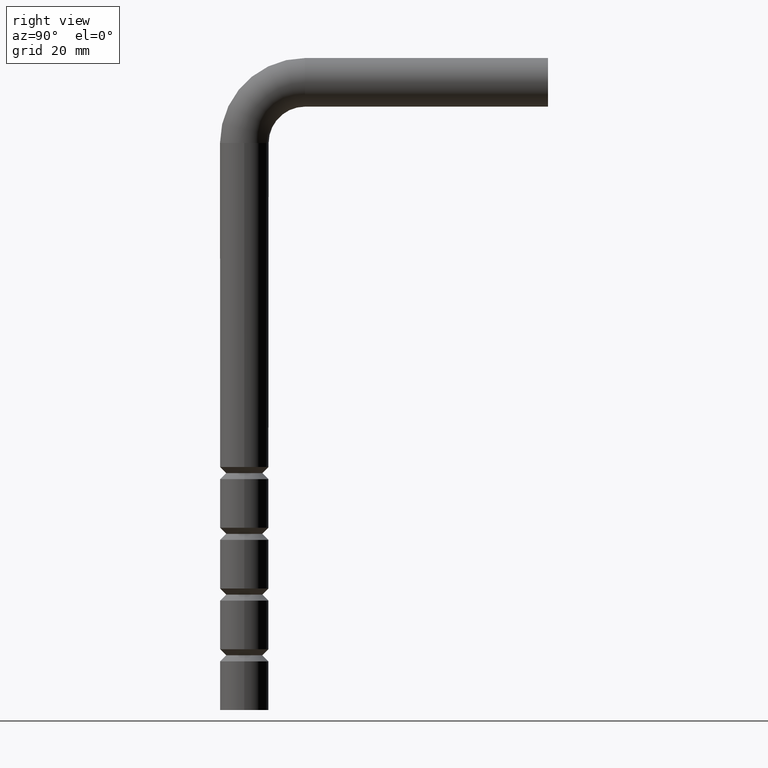
[diagram: clean part render]
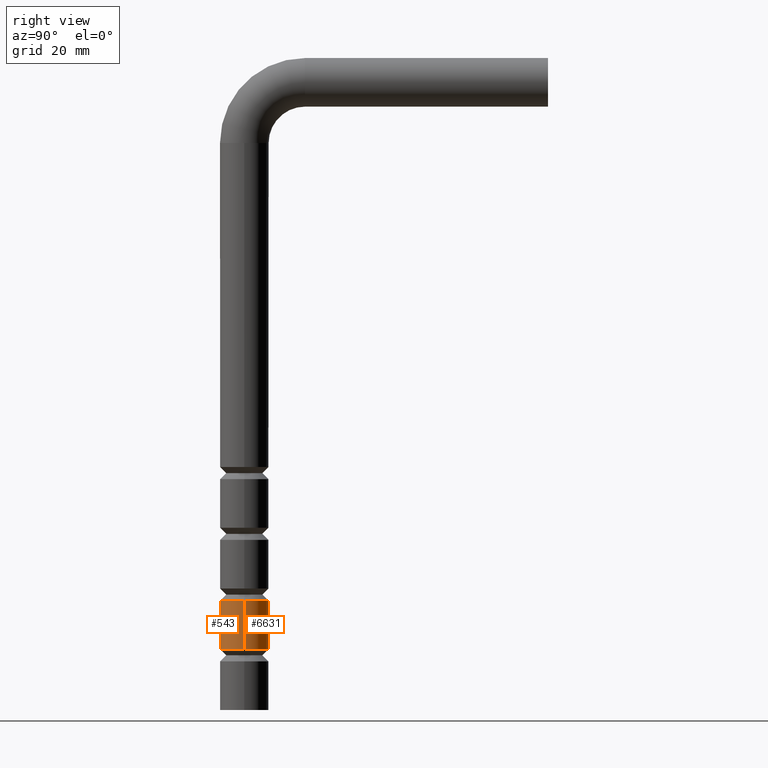
[diagram: same view with one multi-face feature highlighted, each face labeled with its STEP entity id]
A machine part, right view. The highlighted faces form ONE feature: a constant-radius fillet chain: 2 tangent blend faces with common blend radius 6 mm. The faces share edges in the B-rep.
Their STEP definitions:
[1] entity #6631 (Cylinder):
#249 = EDGE_LOOP ( 'NONE', ( #5416, #2229, #1898, #2442 ) ) ;
#261 = CARTESIAN_POINT ( 'NONE',  ( 5.999999999999895195, 7.347880794883991546E-16, 27.00000000000000000 ) ) ;
#524 = DIRECTION ( 'NONE',  ( -0.000000000000000000, -0.000000000000000000, -1.000000000000000000 ) ) ;
#684 = CIRCLE ( 'NONE', #9804, 5.999999999999895195 ) ;
#1173 = VERTEX_POINT ( 'NONE', #5008 ) ;
#1367 = LINE ( 'NONE', #6902, #3727 ) ;
#1506 = CARTESIAN_POINT ( 'NONE',  ( 0.000000000000000000, 0.000000000000000000, 15.00000000000000000 ) ) ;
#1898 = ORIENTED_EDGE ( 'NONE', *, *, #11419, .F. ) ;
#2229 = ORIENTED_EDGE ( 'NONE', *, *, #9039, .T. ) ;
#2442 = ORIENTED_EDGE ( 'NONE', *, *, #10203, .F. ) ;
#2487 = DIRECTION ( 'NONE',  ( -0.000000000000000000, -0.000000000000000000, -1.000000000000000000 ) ) ;
#2561 = DIRECTION ( 'NONE',  ( 0.000000000000000000, 0.000000000000000000, -1.000000000000000000 ) ) ;
#3383 = CARTESIAN_POINT ( 'NONE',  ( 0.000000000000000000, 0.000000000000000000, 27.00000000000000000 ) ) ;
#3727 = VECTOR ( 'NONE', #4912, 1000.000000000000000 ) ;
#4215 = DIRECTION ( 'NONE',  ( -1.000000000000000000, 0.000000000000000000, 0.000000000000000000 ) ) ;
#4499 = AXIS2_PLACEMENT_3D ( 'NONE', #12252, #8234, #4215 ) ;
#4547 = DIRECTION ( 'NONE',  ( -1.000000000000000000, 0.000000000000000000, 0.000000000000000000 ) ) ;
#4805 = CARTESIAN_POINT ( 'NONE',  ( -5.999999999999895195, 0.000000000000000000, 27.00000000000000000 ) ) ;
#4836 = CYLINDRICAL_SURFACE ( 'NONE', #4499, 6.000000000000000888 ) ;
#4912 = DIRECTION ( 'NONE',  ( 0.000000000000000000, 0.000000000000000000, -1.000000000000000000 ) ) ;
#4993 = FACE_OUTER_BOUND ( 'NONE', #249, .T. ) ;
#5008 = CARTESIAN_POINT ( 'NONE',  ( -6.000000000000000000, 0.000000000000000000, 15.00000000000000000 ) ) ;
#5416 = ORIENTED_EDGE ( 'NONE', *, *, #8629, .T. ) ;
#6273 = CIRCLE ( 'NONE', #8192, 6.000000000000000000 ) ;
#6631 = ADVANCED_FACE ( 'NONE', ( #4993 ), #4836, .T. ) ;
#6902 = CARTESIAN_POINT ( 'NONE',  ( -6.000000000000000888, 0.000000000000000000, 140.0000000000000000 ) ) ;
#8192 = AXIS2_PLACEMENT_3D ( 'NONE', #1506, #2487, #11579 ) ;
#8229 = VERTEX_POINT ( 'NONE', #4805 ) ;
#8234 = DIRECTION ( 'NONE',  ( 0.000000000000000000, 0.000000000000000000, -1.000000000000000000 ) ) ;
#8629 = EDGE_CURVE ( 'NONE', #8229, #12540, #684, .T. ) ;
#9039 = EDGE_CURVE ( 'NONE', #12540, #9836, #9892, .T. ) ;
#9804 = AXIS2_PLACEMENT_3D ( 'NONE', #3383, #524, #4547 ) ;
#9836 = VERTEX_POINT ( 'NONE', #11163 ) ;
#9892 = LINE ( 'NONE', #12738, #10217 ) ;
#10203 = EDGE_CURVE ( 'NONE', #8229, #1173, #1367, .T. ) ;
#10217 = VECTOR ( 'NONE', #2561, 1000.000000000000000 ) ;
#11163 = CARTESIAN_POINT ( 'NONE',  ( 6.000000000000000000, 7.347880794884120722E-16, 15.00000000000000000 ) ) ;
#11419 = EDGE_CURVE ( 'NONE', #1173, #9836, #6273, .T. ) ;
#11579 = DIRECTION ( 'NONE',  ( -1.000000000000000000, 0.000000000000000000, 0.000000000000000000 ) ) ;
#12252 = CARTESIAN_POINT ( 'NONE',  ( 0.000000000000000000, 0.000000000000000000, 140.0000000000000000 ) ) ;
#12540 = VERTEX_POINT ( 'NONE', #261 ) ;
#12738 = CARTESIAN_POINT ( 'NONE',  ( 6.000000000000000888, 7.347880794884120722E-16, 140.0000000000000000 ) ) ;
[2] entity #543 (Cylinder):
#52 = DIRECTION ( 'NONE',  ( -0.000000000000000000, -0.000000000000000000, -1.000000000000000000 ) ) ;
#261 = CARTESIAN_POINT ( 'NONE',  ( 5.999999999999895195, 7.347880794883991546E-16, 27.00000000000000000 ) ) ;
#543 = ADVANCED_FACE ( 'NONE', ( #2440 ), #7827, .T. ) ;
#1173 = VERTEX_POINT ( 'NONE', #5008 ) ;
#1367 = LINE ( 'NONE', #6902, #3727 ) ;
#1520 = DIRECTION ( 'NONE',  ( -1.000000000000000000, 0.000000000000000000, 0.000000000000000000 ) ) ;
#2147 = DIRECTION ( 'NONE',  ( -1.000000000000000000, 0.000000000000000000, 0.000000000000000000 ) ) ;
#2440 = FACE_OUTER_BOUND ( 'NONE', #4563, .T. ) ;
#2561 = DIRECTION ( 'NONE',  ( 0.000000000000000000, 0.000000000000000000, -1.000000000000000000 ) ) ;
#2588 = CARTESIAN_POINT ( 'NONE',  ( 0.000000000000000000, 0.000000000000000000, 15.00000000000000000 ) ) ;
#3577 = DIRECTION ( 'NONE',  ( -0.000000000000000000, -0.000000000000000000, -1.000000000000000000 ) ) ;
#3727 = VECTOR ( 'NONE', #4912, 1000.000000000000000 ) ;
#4563 = EDGE_LOOP ( 'NONE', ( #8478, #6516, #10724, #11732 ) ) ;
#4577 = AXIS2_PLACEMENT_3D ( 'NONE', #2588, #3577, #1520 ) ;
#4805 = CARTESIAN_POINT ( 'NONE',  ( -5.999999999999895195, 0.000000000000000000, 27.00000000000000000 ) ) ;
#4912 = DIRECTION ( 'NONE',  ( 0.000000000000000000, 0.000000000000000000, -1.000000000000000000 ) ) ;
#5008 = CARTESIAN_POINT ( 'NONE',  ( -6.000000000000000000, 0.000000000000000000, 15.00000000000000000 ) ) ;
#5201 = EDGE_CURVE ( 'NONE', #9836, #1173, #10568, .T. ) ;
#5404 = AXIS2_PLACEMENT_3D ( 'NONE', #9231, #10225, #6097 ) ;
#6097 = DIRECTION ( 'NONE',  ( -1.000000000000000000, 0.000000000000000000, 0.000000000000000000 ) ) ;
#6316 = AXIS2_PLACEMENT_3D ( 'NONE', #10933, #52, #2147 ) ;
#6516 = ORIENTED_EDGE ( 'NONE', *, *, #11267, .T. ) ;
#6902 = CARTESIAN_POINT ( 'NONE',  ( -6.000000000000000888, 0.000000000000000000, 140.0000000000000000 ) ) ;
#7827 = CYLINDRICAL_SURFACE ( 'NONE', #5404, 6.000000000000000888 ) ;
#8229 = VERTEX_POINT ( 'NONE', #4805 ) ;
#8478 = ORIENTED_EDGE ( 'NONE', *, *, #9039, .F. ) ;
#9039 = EDGE_CURVE ( 'NONE', #12540, #9836, #9892, .T. ) ;
#9231 = CARTESIAN_POINT ( 'NONE',  ( 0.000000000000000000, 0.000000000000000000, 140.0000000000000000 ) ) ;
#9764 = CIRCLE ( 'NONE', #6316, 5.999999999999895195 ) ;
#9836 = VERTEX_POINT ( 'NONE', #11163 ) ;
#9892 = LINE ( 'NONE', #12738, #10217 ) ;
#10203 = EDGE_CURVE ( 'NONE', #8229, #1173, #1367, .T. ) ;
#10217 = VECTOR ( 'NONE', #2561, 1000.000000000000000 ) ;
#10225 = DIRECTION ( 'NONE',  ( 0.000000000000000000, 0.000000000000000000, -1.000000000000000000 ) ) ;
#10568 = CIRCLE ( 'NONE', #4577, 6.000000000000000000 ) ;
#10724 = ORIENTED_EDGE ( 'NONE', *, *, #10203, .T. ) ;
#10933 = CARTESIAN_POINT ( 'NONE',  ( 0.000000000000000000, 0.000000000000000000, 27.00000000000000000 ) ) ;
#11163 = CARTESIAN_POINT ( 'NONE',  ( 6.000000000000000000, 7.347880794884120722E-16, 15.00000000000000000 ) ) ;
#11267 = EDGE_CURVE ( 'NONE', #12540, #8229, #9764, .T. ) ;
#11732 = ORIENTED_EDGE ( 'NONE', *, *, #5201, .F. ) ;
#12540 = VERTEX_POINT ( 'NONE', #261 ) ;
#12738 = CARTESIAN_POINT ( 'NONE',  ( 6.000000000000000888, 7.347880794884120722E-16, 140.0000000000000000 ) ) ;